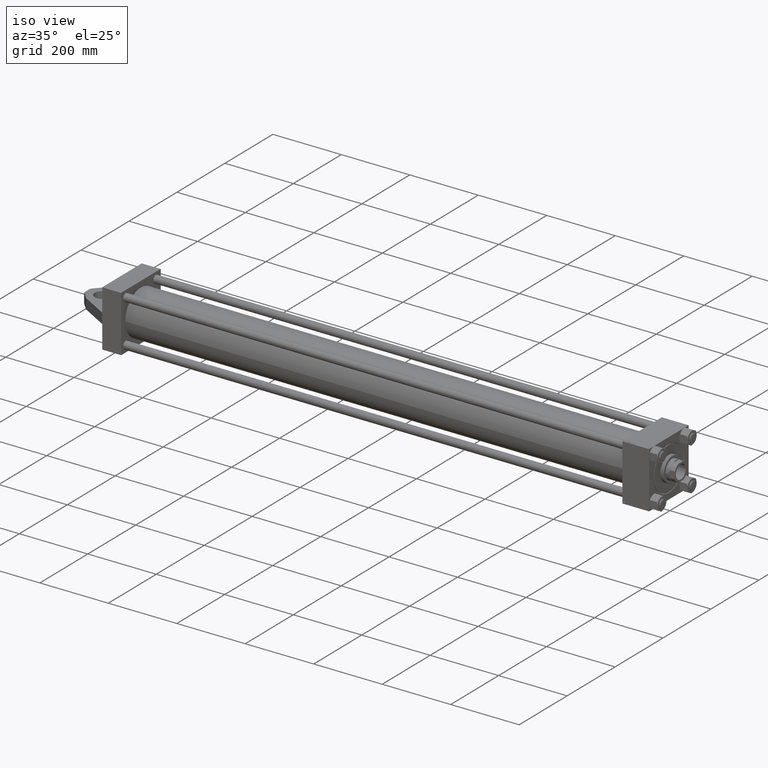
[diagram: clean part render]
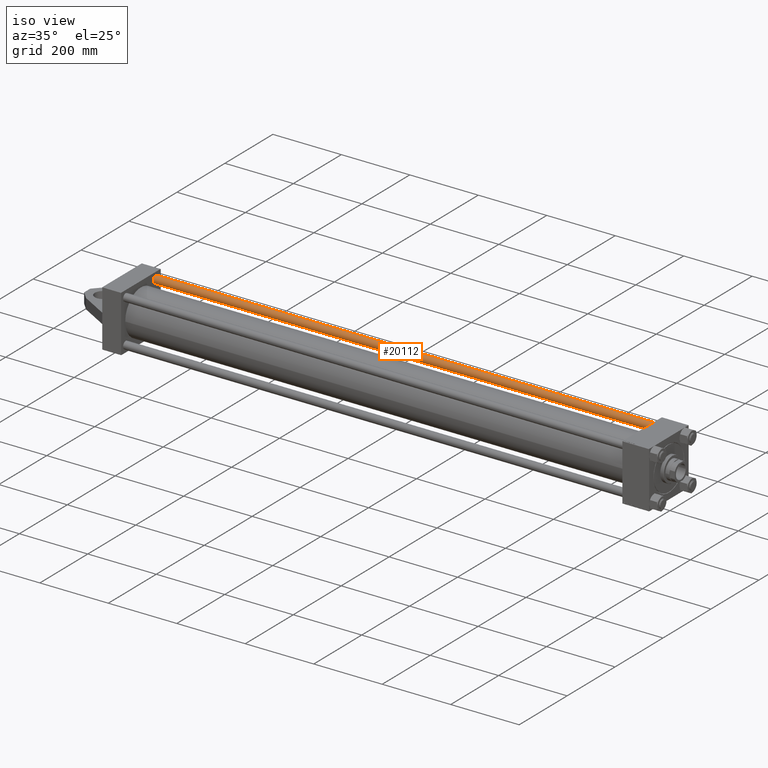
[diagram: same view with one face highlighted and labeled with its STEP entity id]
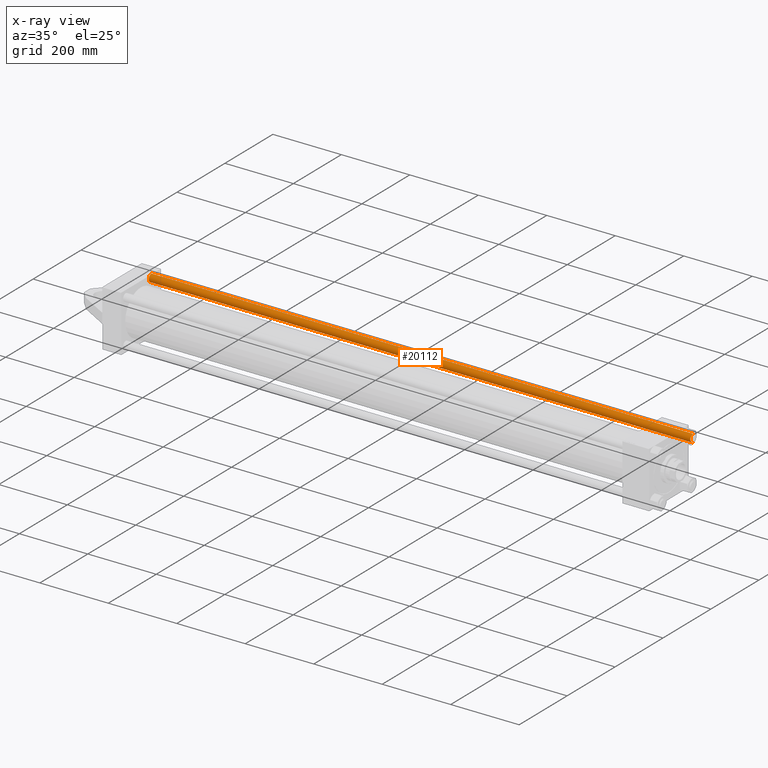
[diagram: x-ray of the same camera — body ghosted, the highlighted face saturated]
A machine part, iso view. The second image highlights one B-rep face of the part: STEP entity #20112.
The next image is the same camera in x-ray: the body ghosted, the highlighted face saturated — about 0% of this face is hidden behind the body in this view.
In plain terms, the highlighted cylindrical surface (edge-blend (fillet) strip) has radius 11 mm, axis along (-1, 0, -0).
Its self-contained STEP definition (entity closure, byte-faithful):
#594 = AXIS2_PLACEMENT_3D ( 'NONE', #45336, #40634, #44644 ) ;
#2036 = ORIENTED_EDGE ( 'NONE', *, *, #17339, .T. ) ;
#3375 = ORIENTED_EDGE ( 'NONE', *, *, #30042, .T. ) ;
#4758 = CARTESIAN_POINT ( 'NONE',  ( -11.00000000000000000, 0.000000000000000000, 1582.500000000000000 ) ) ;
#7031 = VERTEX_POINT ( 'NONE', #4758 ) ;
#7958 = CARTESIAN_POINT ( 'NONE',  ( -11.00000000000000000, 0.000000000000000000, 1583.000000000000000 ) ) ;
#10968 = ORIENTED_EDGE ( 'NONE', *, *, #36276, .F. ) ;
#12936 = CARTESIAN_POINT ( 'NONE',  ( -11.00000000000000000, 0.000000000000000000, 0.5000000000001669775 ) ) ;
#13057 = CIRCLE ( 'NONE', #21320, 11.00000000000000000 ) ;
#13822 = DIRECTION ( 'NONE',  ( 0.000000000000000000, 0.000000000000000000, -1.000000000000000000 ) ) ;
#14149 = DIRECTION ( 'NONE',  ( 1.000000000000000000, 0.000000000000000000, 0.000000000000000000 ) ) ;
#14881 = CARTESIAN_POINT ( 'NONE',  ( 11.00000000000000000, 1.347111479062088405E-15, 0.5000000000001669775 ) ) ;
#15929 = VECTOR ( 'NONE', #23945, 1000.000000000000000 ) ;
#15960 = LINE ( 'NONE', #7958, #43401 ) ;
#16592 = CYLINDRICAL_SURFACE ( 'NONE', #594, 11.00000000000000000 ) ;
#17339 = EDGE_CURVE ( 'NONE', #7031, #19498, #15960, .T. ) ;
#19369 = ORIENTED_EDGE ( 'NONE', *, *, #31333, .T. ) ;
#19498 = VERTEX_POINT ( 'NONE', #12936 ) ;
#20112 = ADVANCED_FACE ( 'NONE', ( #30272 ), #16592, .T. ) ;
#21320 = AXIS2_PLACEMENT_3D ( 'NONE', #42202, #28071, #14149 ) ;
#22521 = AXIS2_PLACEMENT_3D ( 'NONE', #42102, #13822, #31043 ) ;
#23945 = DIRECTION ( 'NONE',  ( -0.000000000000000000, -0.000000000000000000, -1.000000000000000000 ) ) ;
#24481 = EDGE_LOOP ( 'NONE', ( #10968, #19369, #2036, #3375 ) ) ;
#25743 = CARTESIAN_POINT ( 'NONE',  ( 11.00000000000000000, 1.347111479062088405E-15, 1582.500000000000000 ) ) ;
#27703 = VERTEX_POINT ( 'NONE', #14881 ) ;
#28071 = DIRECTION ( 'NONE',  ( -0.000000000000000000, -0.000000000000000000, 1.000000000000000000 ) ) ;
#28959 = VERTEX_POINT ( 'NONE', #25743 ) ;
#30042 = EDGE_CURVE ( 'NONE', #19498, #27703, #13057, .T. ) ;
#30272 = FACE_OUTER_BOUND ( 'NONE', #24481, .T. ) ;
#30331 = DIRECTION ( 'NONE',  ( -0.000000000000000000, -0.000000000000000000, -1.000000000000000000 ) ) ;
#31043 = DIRECTION ( 'NONE',  ( 1.000000000000000000, 0.000000000000000000, 0.000000000000000000 ) ) ;
#31333 = EDGE_CURVE ( 'NONE', #28959, #7031, #36071, .T. ) ;
#36071 = CIRCLE ( 'NONE', #22521, 11.00000000000000000 ) ;
#36276 = EDGE_CURVE ( 'NONE', #28959, #27703, #41841, .T. ) ;
#40634 = DIRECTION ( 'NONE',  ( -0.000000000000000000, -0.000000000000000000, -1.000000000000000000 ) ) ;
#41606 = CARTESIAN_POINT ( 'NONE',  ( 11.00000000000000000, 1.347111479062088405E-15, 1583.000000000000000 ) ) ;
#41841 = LINE ( 'NONE', #41606, #15929 ) ;
#42102 = CARTESIAN_POINT ( 'NONE',  ( 0.000000000000000000, 0.000000000000000000, 1582.500000000000000 ) ) ;
#42202 = CARTESIAN_POINT ( 'NONE',  ( 0.000000000000000000, 0.000000000000000000, 0.5000000000001669775 ) ) ;
#43401 = VECTOR ( 'NONE', #30331, 1000.000000000000000 ) ;
#44644 = DIRECTION ( 'NONE',  ( -1.000000000000000000, 0.000000000000000000, 0.000000000000000000 ) ) ;
#45336 = CARTESIAN_POINT ( 'NONE',  ( 0.000000000000000000, 0.000000000000000000, 1583.000000000000000 ) ) ;